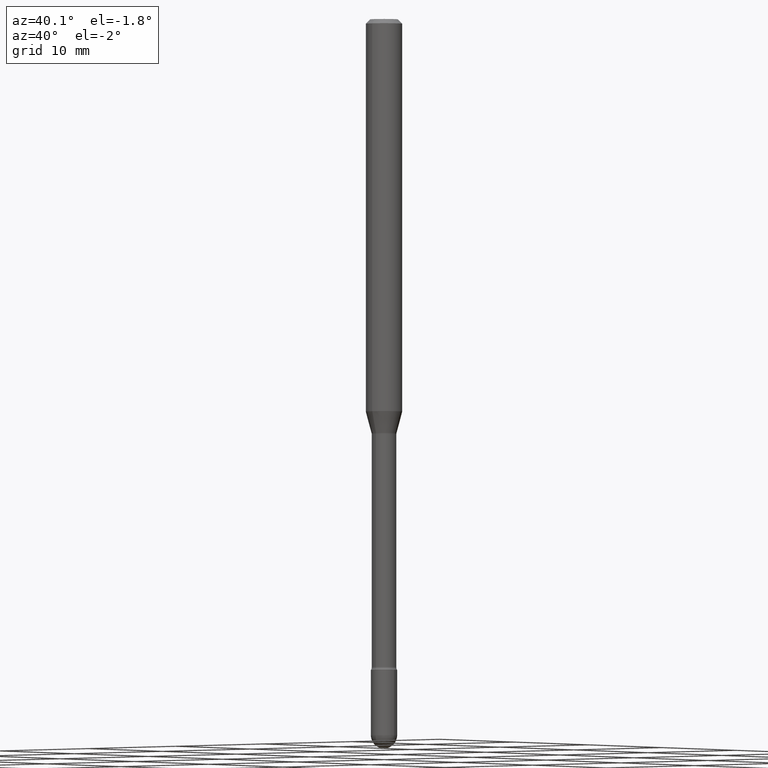
[diagram: clean part render]
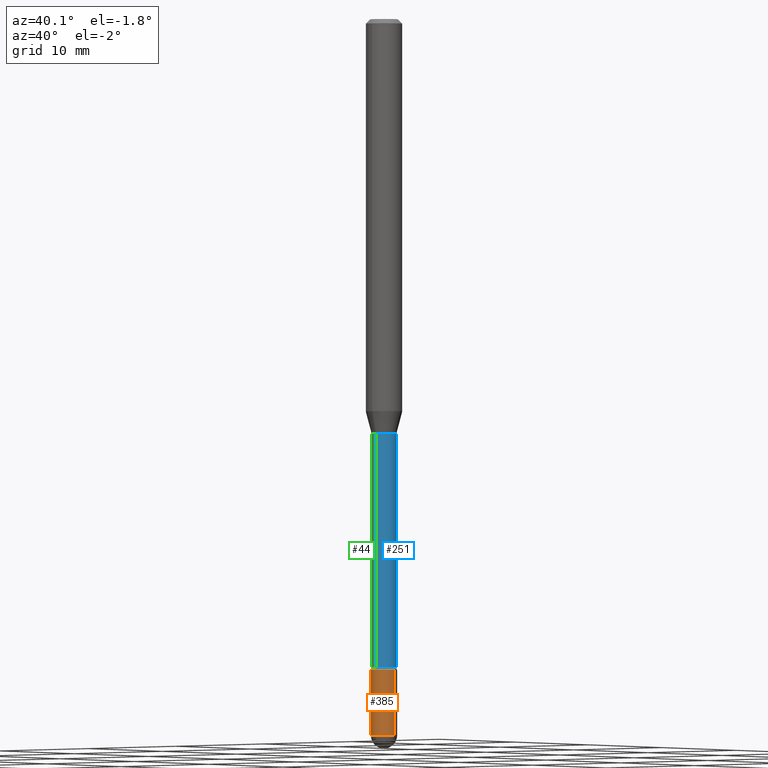
[diagram: same view with three faces highlighted in distinct colors, each labeled with its STEP entity id]
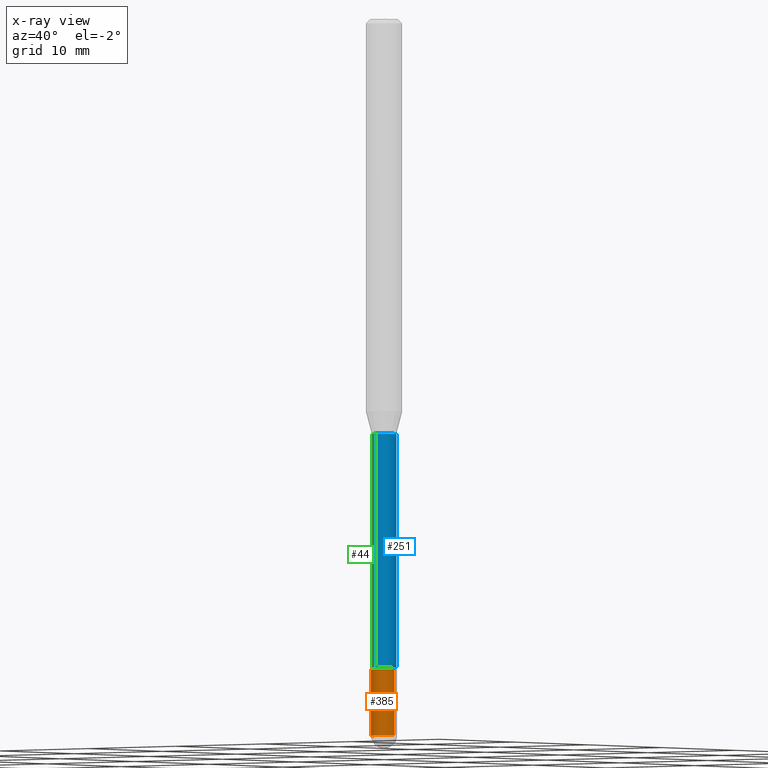
[diagram: x-ray of the same camera — body ghosted, the three highlighted faces saturated]
A machine part, auxiliary view with three faces highlighted in distinct colors.
The next image is the same camera in x-ray (body ghosted, the three faces saturated) — at least one of them is partly hidden behind the body in this view.
Their STEP definitions:

[orange] entity #385 — the highlighted cylindrical surface (edge-blend (fillet) strip) has radius 1.143 mm, axis along (-0, 0, 1).
#9 = EDGE_LOOP ( 'NONE', ( #116, #192, #387, #317, #392 ) ) ;
#11 = CARTESIAN_POINT ( 'NONE',  ( 0.04499999999999999833, -8.100236706116096837E-15, -2.229999999999999982 ) ) ;
#13 = CARTESIAN_POINT ( 'NONE',  ( -3.197442310919848226E-16, -0.04500000000000855399, -2.454999999999999627 ) ) ;
#19 = EDGE_CURVE ( 'NONE', #278, #358, #113, .T. ) ;
#22 = DIRECTION ( 'NONE',  ( -2.445468806185136597E-29, 3.491481338843145583E-15, 1.000000000000000000 ) ) ;
#111 = DIRECTION ( 'NONE',  ( 1.000000000000000000, -6.982962677686266711E-15, 4.876176775795935793E-29 ) ) ;
#113 = CIRCLE ( 'NONE', #424, 0.04499999999999999833 ) ;
#116 = ORIENTED_EDGE ( 'NONE', *, *, #365, .F. ) ;
#118 = CARTESIAN_POINT ( 'NONE',  ( 6.003625919184510659E-29, -8.571586686859921733E-15, -2.455000000000000071 ) ) ;
#132 = EDGE_CURVE ( 'NONE', #358, #239, #185, .T. ) ;
#141 = AXIS2_PLACEMENT_3D ( 'NONE', #155, #359, #408 ) ;
#155 = CARTESIAN_POINT ( 'NONE',  ( 5.453395437792854252E-29, -7.786003385620215150E-15, -2.229999999999999982 ) ) ;
#161 = EDGE_CURVE ( 'NONE', #239, #351, #554, .T. ) ;
#162 = DIRECTION ( 'NONE',  ( -2.445468806185136877E-29, 3.491481338843145188E-15, 1.000000000000000000 ) ) ;
#170 = VECTOR ( 'NONE', #406, 39.37007874015748143 ) ;
#185 = CIRCLE ( 'NONE', #498, 0.04499999999999999833 ) ;
#192 = ORIENTED_EDGE ( 'NONE', *, *, #19, .T. ) ;
#193 = CARTESIAN_POINT ( 'NONE',  ( -0.04499999999999999833, -7.859050805148022285E-15, -2.229999999999999982 ) ) ;
#196 = CIRCLE ( 'NONE', #141, 0.04499999999999999833 ) ;
#239 = VERTEX_POINT ( 'NONE', #303 ) ;
#253 = CARTESIAN_POINT ( 'NONE',  ( 6.003625919184510659E-29, -8.571586686859921733E-15, -2.455000000000000071 ) ) ;
#278 = VERTEX_POINT ( 'NONE', #442 ) ;
#303 = CARTESIAN_POINT ( 'NONE',  ( 0.04499999999999999833, -8.493028356735950128E-15, -2.455000000000000071 ) ) ;
#308 = AXIS2_PLACEMENT_3D ( 'NONE', #361, #319, #111 ) ;
#317 = ORIENTED_EDGE ( 'NONE', *, *, #161, .T. ) ;
#319 = DIRECTION ( 'NONE',  ( -2.445468806185136597E-29, 3.491481338843145583E-15, 1.000000000000000000 ) ) ;
#332 = DIRECTION ( 'NONE',  ( 1.000000000000000000, -6.982962677686269077E-15, 0.000000000000000000 ) ) ;
#335 = CARTESIAN_POINT ( 'NONE',  ( 0.04499999999999999833, -3.142333204958819823E-16, 2.194279549108170967E-30 ) ) ;
#337 = DIRECTION ( 'NONE',  ( 1.000000000000000000, -6.982962677686269077E-15, 0.000000000000000000 ) ) ;
#351 = VERTEX_POINT ( 'NONE', #11 ) ;
#357 = CYLINDRICAL_SURFACE ( 'NONE', #308, 0.04499999999999999833 ) ;
#358 = VERTEX_POINT ( 'NONE', #13 ) ;
#359 = DIRECTION ( 'NONE',  ( -2.445468806185136597E-29, 3.491481338843145583E-15, 1.000000000000000000 ) ) ;
#361 = CARTESIAN_POINT ( 'NONE',  ( 0.000000000000000000, 0.000000000000000000, 0.000000000000000000 ) ) ;
#365 = EDGE_CURVE ( 'NONE', #278, #485, #486, .T. ) ;
#373 = EDGE_CURVE ( 'NONE', #485, #351, #196, .T. ) ;
#385 = ADVANCED_FACE ( 'NONE', ( #529 ), #357, .T. ) ;
#387 = ORIENTED_EDGE ( 'NONE', *, *, #132, .T. ) ;
#392 = ORIENTED_EDGE ( 'NONE', *, *, #373, .F. ) ;
#406 = DIRECTION ( 'NONE',  ( -2.445468806185136877E-29, 3.491481338843145188E-15, 1.000000000000000000 ) ) ;
#408 = DIRECTION ( 'NONE',  ( 1.000000000000000000, -6.982962677686269077E-15, 0.000000000000000000 ) ) ;
#416 = VECTOR ( 'NONE', #162, 39.37007874015748143 ) ;
#419 = DIRECTION ( 'NONE',  ( -2.445468806185136597E-29, 3.491481338843145583E-15, 1.000000000000000000 ) ) ;
#424 = AXIS2_PLACEMENT_3D ( 'NONE', #118, #419, #332 ) ;
#442 = CARTESIAN_POINT ( 'NONE',  ( -0.04499999999999999833, -7.859050805148022285E-15, -2.455000000000000071 ) ) ;
#485 = VERTEX_POINT ( 'NONE', #193 ) ;
#486 = LINE ( 'NONE', #496, #170 ) ;
#496 = CARTESIAN_POINT ( 'NONE',  ( -0.04499999999999999833, 3.197442310920450718E-16, -2.213520790614707560E-30 ) ) ;
#498 = AXIS2_PLACEMENT_3D ( 'NONE', #253, #22, #337 ) ;
#529 = FACE_OUTER_BOUND ( 'NONE', #9, .T. ) ;
#554 = LINE ( 'NONE', #335, #416 ) ;

[blue] entity #251 — the highlighted cylindrical surface (edge-blend (fillet) strip) has radius 1.0744 mm, axis along (-0, 0, 1).
#5 = VERTEX_POINT ( 'NONE', #234 ) ;
#10 = EDGE_CURVE ( 'NONE', #282, #5, #535, .T. ) ;
#21 = ORIENTED_EDGE ( 'NONE', *, *, #10, .T. ) ;
#37 = EDGE_CURVE ( 'NONE', #269, #304, #62, .T. ) ;
#60 = CARTESIAN_POINT ( 'NONE',  ( 3.005595772265228033E-16, 0.04230000000000006671, 3.303788382467604030E-16 ) ) ;
#62 = CIRCLE ( 'NONE', #544, 0.04229999999999999732 ) ;
#67 = CARTESIAN_POINT ( 'NONE',  ( 3.477279961957444351E-29, -4.964963155602911741E-15, -1.421974787463811118 ) ) ;
#93 = CARTESIAN_POINT ( 'NONE',  ( 3.005595772265770868E-16, 0.04229999999999502908, -1.421974787463811563 ) ) ;
#130 = CYLINDRICAL_SURFACE ( 'NONE', #447, 0.04230000000000006671 ) ;
#147 = CARTESIAN_POINT ( 'NONE',  ( -2.953793212661295465E-16, -0.04230000000000006671, 6.257679595357316741E-16 ) ) ;
#175 = CARTESIAN_POINT ( 'NONE',  ( -2.953793212660942943E-16, -0.04230000000000496557, -1.421974787463810896 ) ) ;
#226 = AXIS2_PLACEMENT_3D ( 'NONE', #407, #539, #549 ) ;
#234 = CARTESIAN_POINT ( 'NONE',  ( 3.101519041593385169E-16, 0.04229999999999237148, -2.221414547187247734 ) ) ;
#238 = LINE ( 'NONE', #147, #255 ) ;
#251 = ADVANCED_FACE ( 'NONE', ( #266 ), #130, .T. ) ;
#255 = VECTOR ( 'NONE', #531, 39.37007874015748143 ) ;
#262 = CARTESIAN_POINT ( 'NONE',  ( -1.169113584055446105E-44, 1.669184350826100908E-30, 4.780733988912460139E-16 ) ) ;
#266 = FACE_OUTER_BOUND ( 'NONE', #397, .T. ) ;
#269 = VERTEX_POINT ( 'NONE', #175 ) ;
#282 = VERTEX_POINT ( 'NONE', #298 ) ;
#298 = CARTESIAN_POINT ( 'NONE',  ( -2.953793212660756081E-16, -0.04230000000000788685, -2.221414547187247290 ) ) ;
#304 = VERTEX_POINT ( 'NONE', #93 ) ;
#347 = DIRECTION ( 'NONE',  ( -2.445387915885210370E-29, 3.491597178356629868E-15, 1.000000000000000000 ) ) ;
#380 = DIRECTION ( 'NONE',  ( -6.982962677686266711E-15, -1.000000000000000000, 6.458269488567998169E-15 ) ) ;
#397 = EDGE_LOOP ( 'NONE', ( #21, #410, #432, #490 ) ) ;
#401 = LINE ( 'NONE', #60, #510 ) ;
#407 = CARTESIAN_POINT ( 'NONE',  ( 5.432220289863311554E-29, -7.756284764919363246E-15, -2.221414547187247290 ) ) ;
#410 = ORIENTED_EDGE ( 'NONE', *, *, #487, .T. ) ;
#421 = EDGE_CURVE ( 'NONE', #282, #269, #238, .T. ) ;
#432 = ORIENTED_EDGE ( 'NONE', *, *, #37, .F. ) ;
#440 = DIRECTION ( 'NONE',  ( -6.982962677686266711E-15, -1.000000000000000000, 3.491597178356629473E-15 ) ) ;
#447 = AXIS2_PLACEMENT_3D ( 'NONE', #262, #347, #440 ) ;
#487 = EDGE_CURVE ( 'NONE', #5, #304, #401, .T. ) ;
#490 = ORIENTED_EDGE ( 'NONE', *, *, #421, .F. ) ;
#510 = VECTOR ( 'NONE', #540, 39.37007874015748143 ) ;
#514 = DIRECTION ( 'NONE',  ( -2.445387915885210370E-29, 3.491597178356629868E-15, 1.000000000000000000 ) ) ;
#531 = DIRECTION ( 'NONE',  ( -2.445387915885210370E-29, 3.491597178356629473E-15, 1.000000000000000000 ) ) ;
#535 = CIRCLE ( 'NONE', #226, 0.04230000000000012916 ) ;
#539 = DIRECTION ( 'NONE',  ( -2.445387915885210370E-29, 3.491597178356629868E-15, 1.000000000000000000 ) ) ;
#540 = DIRECTION ( 'NONE',  ( -2.445387915885210370E-29, 3.491597178356629473E-15, 1.000000000000000000 ) ) ;
#544 = AXIS2_PLACEMENT_3D ( 'NONE', #67, #514, #380 ) ;
#549 = DIRECTION ( 'NONE',  ( -6.982962677686266711E-15, -1.000000000000000000, 6.458269488567978448E-15 ) ) ;

[green] entity #44 — the highlighted cylindrical surface (edge-blend (fillet) strip) has radius 1.0744 mm, axis along (-0, 0, 1).
#5 = VERTEX_POINT ( 'NONE', #234 ) ;
#6 = AXIS2_PLACEMENT_3D ( 'NONE', #30, #511, #244 ) ;
#30 = CARTESIAN_POINT ( 'NONE',  ( -1.169113584055446105E-44, 1.669184350826100908E-30, 4.780733988912460139E-16 ) ) ;
#44 = ADVANCED_FACE ( 'NONE', ( #547 ), #121, .T. ) ;
#60 = CARTESIAN_POINT ( 'NONE',  ( 3.005595772265228033E-16, 0.04230000000000006671, 3.303788382467604030E-16 ) ) ;
#70 = EDGE_CURVE ( 'NONE', #304, #269, #289, .T. ) ;
#93 = CARTESIAN_POINT ( 'NONE',  ( 3.005595772265770868E-16, 0.04229999999999502908, -1.421974787463811563 ) ) ;
#121 = CYLINDRICAL_SURFACE ( 'NONE', #6, 0.04230000000000006671 ) ;
#146 = EDGE_LOOP ( 'NONE', ( #302, #195, #261, #228 ) ) ;
#147 = CARTESIAN_POINT ( 'NONE',  ( -2.953793212661295465E-16, -0.04230000000000006671, 6.257679595357316741E-16 ) ) ;
#173 = DIRECTION ( 'NONE',  ( -6.982962677686266711E-15, -1.000000000000000000, 6.458269488567998169E-15 ) ) ;
#175 = CARTESIAN_POINT ( 'NONE',  ( -2.953793212660942943E-16, -0.04230000000000496557, -1.421974787463810896 ) ) ;
#191 = EDGE_CURVE ( 'NONE', #5, #282, #210, .T. ) ;
#195 = ORIENTED_EDGE ( 'NONE', *, *, #191, .T. ) ;
#210 = CIRCLE ( 'NONE', #246, 0.04230000000000012916 ) ;
#228 = ORIENTED_EDGE ( 'NONE', *, *, #70, .F. ) ;
#234 = CARTESIAN_POINT ( 'NONE',  ( 3.101519041593385169E-16, 0.04229999999999237148, -2.221414547187247734 ) ) ;
#238 = LINE ( 'NONE', #147, #255 ) ;
#241 = CARTESIAN_POINT ( 'NONE',  ( 5.432220289863311554E-29, -7.756284764919363246E-15, -2.221414547187247290 ) ) ;
#244 = DIRECTION ( 'NONE',  ( -6.982962677686266711E-15, -1.000000000000000000, 3.491597178356629473E-15 ) ) ;
#245 = AXIS2_PLACEMENT_3D ( 'NONE', #465, #415, #173 ) ;
#246 = AXIS2_PLACEMENT_3D ( 'NONE', #241, #413, #329 ) ;
#255 = VECTOR ( 'NONE', #531, 39.37007874015748143 ) ;
#261 = ORIENTED_EDGE ( 'NONE', *, *, #421, .T. ) ;
#269 = VERTEX_POINT ( 'NONE', #175 ) ;
#282 = VERTEX_POINT ( 'NONE', #298 ) ;
#289 = CIRCLE ( 'NONE', #245, 0.04229999999999999732 ) ;
#298 = CARTESIAN_POINT ( 'NONE',  ( -2.953793212660756081E-16, -0.04230000000000788685, -2.221414547187247290 ) ) ;
#302 = ORIENTED_EDGE ( 'NONE', *, *, #487, .F. ) ;
#304 = VERTEX_POINT ( 'NONE', #93 ) ;
#329 = DIRECTION ( 'NONE',  ( -6.982962677686266711E-15, -1.000000000000000000, 6.458269488567978448E-15 ) ) ;
#401 = LINE ( 'NONE', #60, #510 ) ;
#413 = DIRECTION ( 'NONE',  ( -2.445387915885210370E-29, 3.491597178356629868E-15, 1.000000000000000000 ) ) ;
#415 = DIRECTION ( 'NONE',  ( -2.445387915885210370E-29, 3.491597178356629868E-15, 1.000000000000000000 ) ) ;
#421 = EDGE_CURVE ( 'NONE', #282, #269, #238, .T. ) ;
#465 = CARTESIAN_POINT ( 'NONE',  ( 3.477279961957444351E-29, -4.964963155602911741E-15, -1.421974787463811118 ) ) ;
#487 = EDGE_CURVE ( 'NONE', #5, #304, #401, .T. ) ;
#510 = VECTOR ( 'NONE', #540, 39.37007874015748143 ) ;
#511 = DIRECTION ( 'NONE',  ( -2.445387915885210370E-29, 3.491597178356629868E-15, 1.000000000000000000 ) ) ;
#531 = DIRECTION ( 'NONE',  ( -2.445387915885210370E-29, 3.491597178356629473E-15, 1.000000000000000000 ) ) ;
#540 = DIRECTION ( 'NONE',  ( -2.445387915885210370E-29, 3.491597178356629473E-15, 1.000000000000000000 ) ) ;
#547 = FACE_OUTER_BOUND ( 'NONE', #146, .T. ) ;